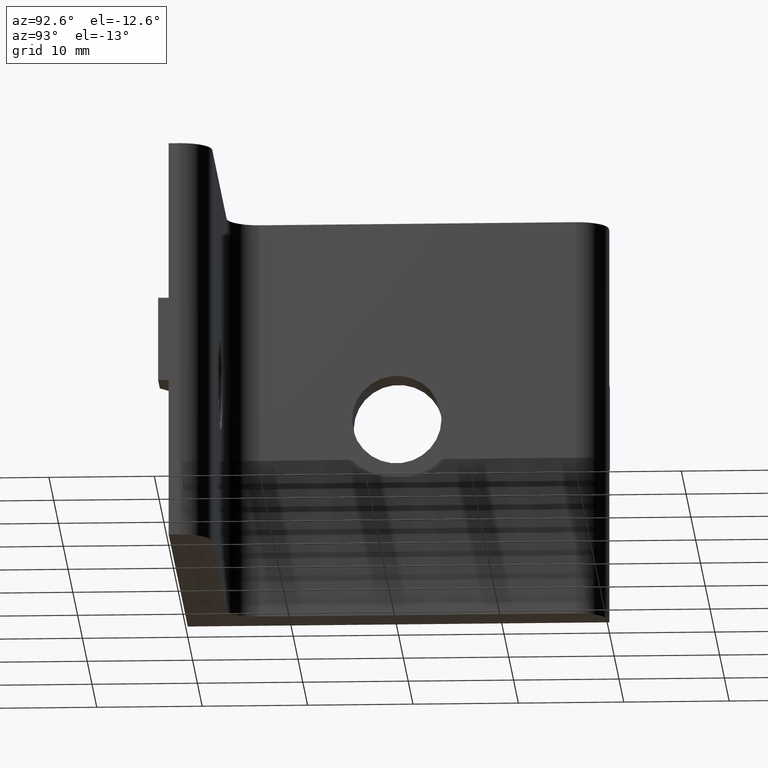
[diagram: clean part render]
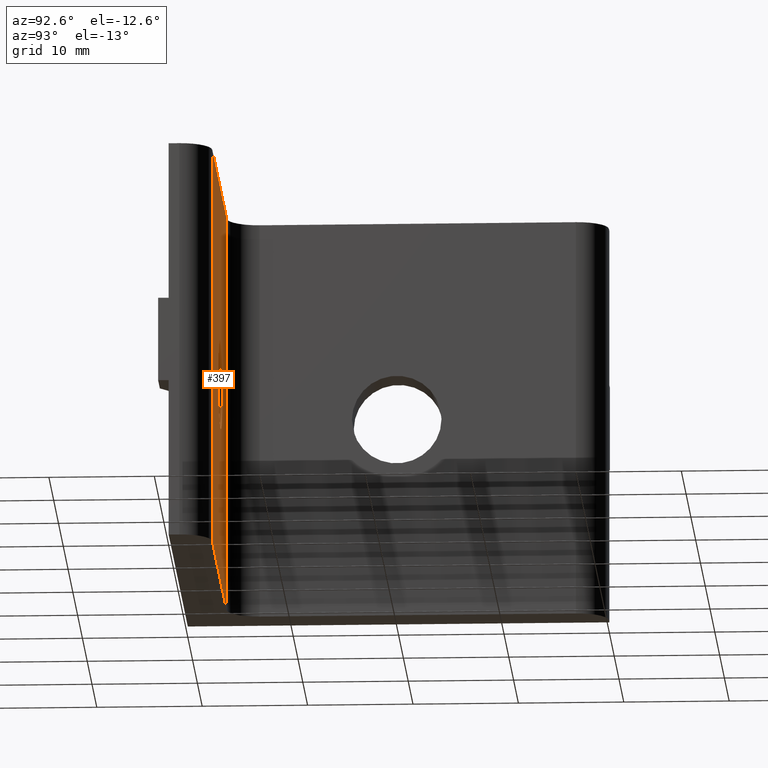
[diagram: same view with one face highlighted and labeled with its STEP entity id]
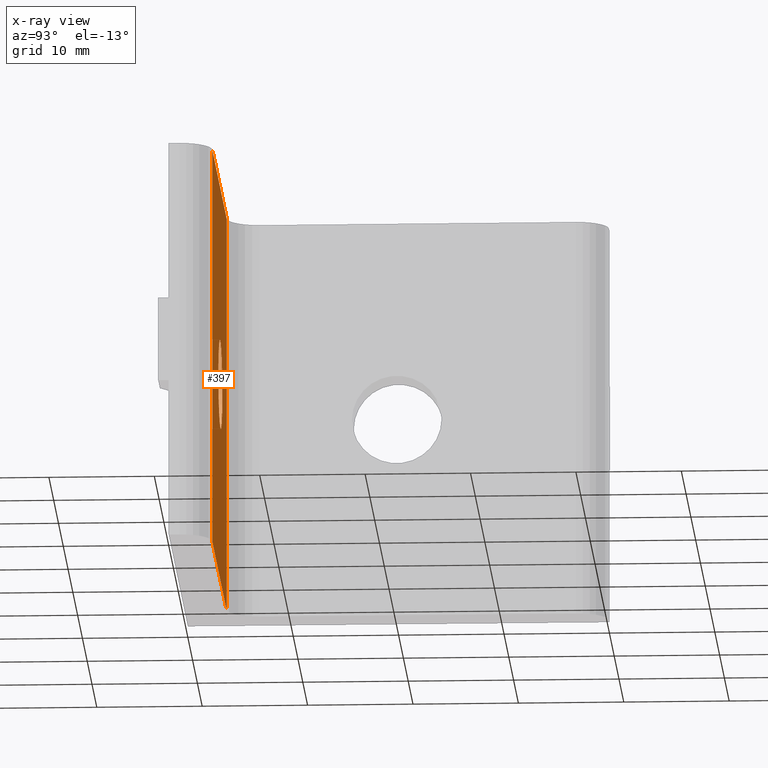
[diagram: x-ray of the same camera — body ghosted, the highlighted face saturated]
A machine part, auxiliary view. The second image highlights one B-rep face of the part: STEP entity #397.
The next image is the same camera in x-ray: the body ghosted, the highlighted face saturated — about 0% of this face is hidden behind the body in this view.
In plain terms, the highlighted planar face has unit normal (0, 1, 0).
Its self-contained STEP definition (entity closure, byte-faithful):
#15=FACE_BOUND('',#62,.T.);
#23=CIRCLE('',#423,4.24999905648292);
#40=FACE_OUTER_BOUND('',#61,.T.);
#61=EDGE_LOOP('',(#287,#288,#289,#290));
#62=EDGE_LOOP('',(#291));
#98=LINE('',#590,#143);
#99=LINE('',#594,#144);
#100=LINE('',#596,#145);
#101=LINE('',#597,#146);
#143=VECTOR('',#473,38.);
#144=VECTOR('',#478,29.6686892302173);
#145=VECTOR('',#479,38.);
#146=VECTOR('',#480,29.6686892302173);
#186=VERTEX_POINT('',#587);
#187=VERTEX_POINT('',#589);
#188=VERTEX_POINT('',#593);
#189=VERTEX_POINT('',#595);
#190=VERTEX_POINT('',#598);
#227=EDGE_CURVE('',#186,#187,#98,.T.);
#229=EDGE_CURVE('',#186,#188,#99,.T.);
#230=EDGE_CURVE('',#188,#189,#100,.T.);
#231=EDGE_CURVE('',#187,#189,#101,.T.);
#232=EDGE_CURVE('',#190,#190,#23,.T.);
#287=ORIENTED_EDGE('',*,*,#229,.T.);
#288=ORIENTED_EDGE('',*,*,#230,.T.);
#289=ORIENTED_EDGE('',*,*,#231,.F.);
#290=ORIENTED_EDGE('',*,*,#227,.F.);
#291=ORIENTED_EDGE('',*,*,#232,.F.);
#380=PLANE('',#422);
#397=ADVANCED_FACE('',(#40,#15),#380,.T.);
#422=AXIS2_PLACEMENT_3D('',#592,#476,#477);
#423=AXIS2_PLACEMENT_3D('',#599,#481,#482);
#473=DIRECTION('',(0.,0.,1.));
#476=DIRECTION('center_axis',(0.,1.,0.));
#477=DIRECTION('ref_axis',(0.,0.,1.));
#478=DIRECTION('',(-1.,0.,0.));
#479=DIRECTION('',(0.,0.,1.));
#480=DIRECTION('',(-1.,0.,0.));
#481=DIRECTION('center_axis',(0.,1.,0.));
#482=DIRECTION('ref_axis',(-1.,0.,0.));
#587=CARTESIAN_POINT('',(36.9999854725841,4.00000674192052,-19.));
#589=CARTESIAN_POINT('',(36.9999854725841,4.00000674192052,19.));
#590=CARTESIAN_POINT('',(36.9999854725841,4.00000674192052,-19.));
#592=CARTESIAN_POINT('Origin',(36.9999854725841,4.00000674192052,-19.));
#593=CARTESIAN_POINT('',(7.33129624236676,4.00000674192097,-19.));
#594=CARTESIAN_POINT('',(36.9999854725841,4.00000674192052,-19.));
#595=CARTESIAN_POINT('',(7.33129624236676,4.00000674192097,19.));
#596=CARTESIAN_POINT('',(7.33129624236676,4.00000674192097,-19.));
#597=CARTESIAN_POINT('',(36.9999854725841,4.00000674192052,19.));
#598=CARTESIAN_POINT('',(24.2499987414494,4.00000674192136,0.));
#599=CARTESIAN_POINT('Origin',(19.9999996849665,4.00000674192142,0.));